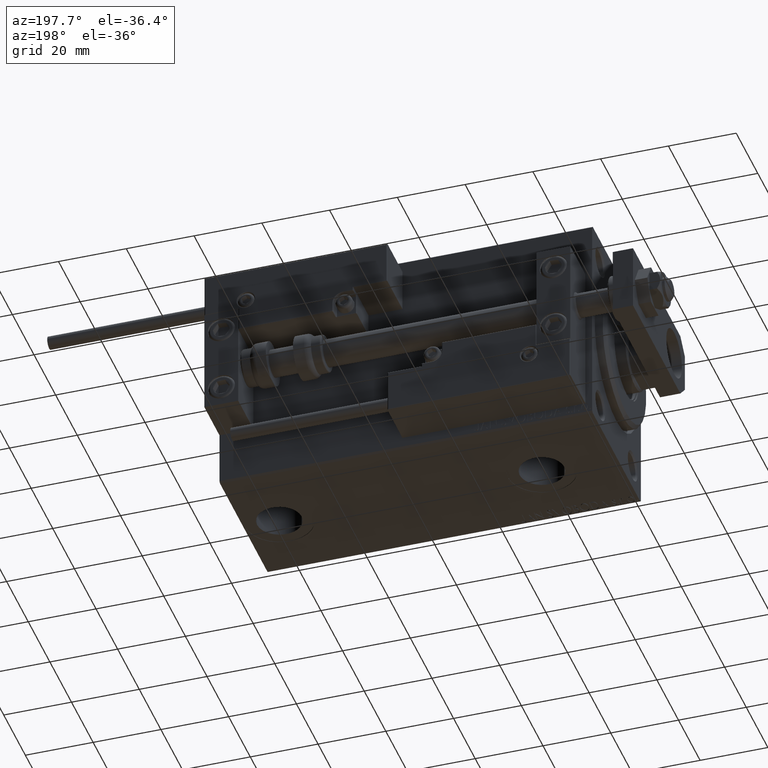
[diagram: clean part render]
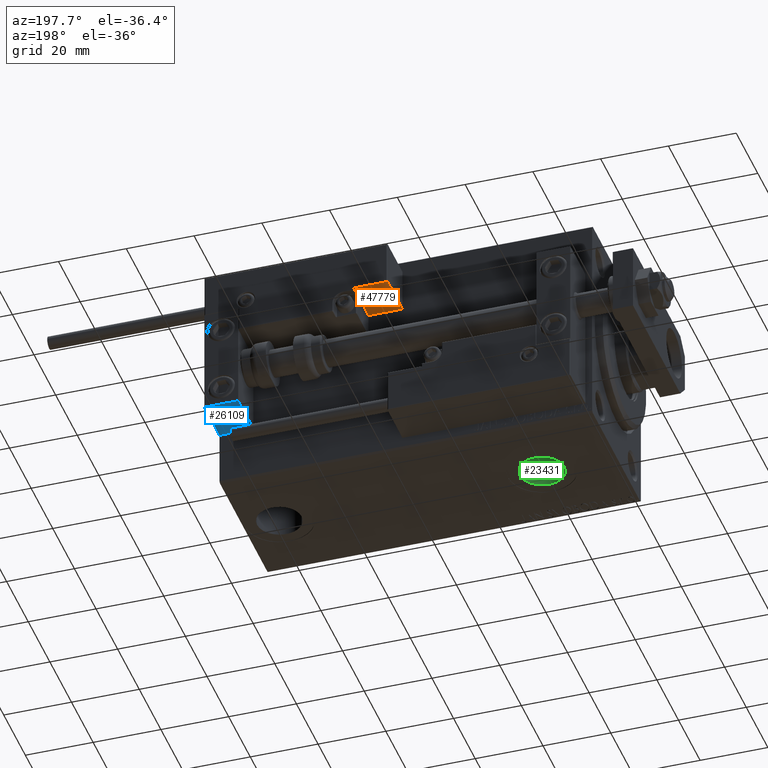
[diagram: same view with three faces highlighted in distinct colors, each labeled with its STEP entity id]
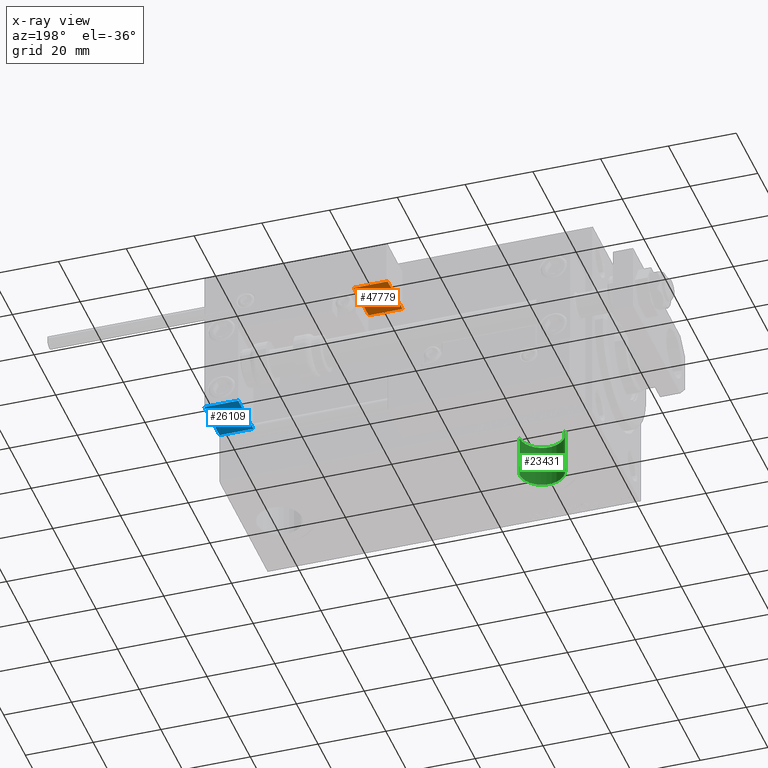
[diagram: x-ray of the same camera — body ghosted, the three highlighted faces saturated]
A machine part, auxiliary view with three faces highlighted in distinct colors.
The next image is the same camera in x-ray (body ghosted, the three faces saturated) — at least one of them is partly hidden behind the body in this view.
Their STEP definitions:

[orange] entity #47779 — the highlighted planar face has unit normal (-0, 0, 1).
#71 = VERTEX_POINT ( 'NONE', #28585 ) ;
#1739 = VERTEX_POINT ( 'NONE', #39042 ) ;
#2638 = VECTOR ( 'NONE', #50954, 1000.000000000000000 ) ;
#2872 = DIRECTION ( 'NONE',  ( -1.000000000000000000, 1.734723475976796001E-16, -0.000000000000000000 ) ) ;
#3399 = CARTESIAN_POINT ( 'NONE',  ( 17.00000000000000000, 7.000000000000009770, 13.70000000000000107 ) ) ;
#6098 = VECTOR ( 'NONE', #9371, 1000.000000000000000 ) ;
#6554 = VERTEX_POINT ( 'NONE', #35045 ) ;
#7495 = EDGE_LOOP ( 'NONE', ( #38696, #36607, #25867, #51426 ) ) ;
#9371 = DIRECTION ( 'NONE',  ( -0.000000000000000000, -0.000000000000000000, -1.000000000000000000 ) ) ;
#11879 = CARTESIAN_POINT ( 'NONE',  ( 17.00000000000000000, 7.000000000000009770, 13.70000000000000107 ) ) ;
#12582 = EDGE_CURVE ( 'NONE', #6554, #1739, #31396, .T. ) ;
#14275 = LINE ( 'NONE', #19075, #2638 ) ;
#14310 = DIRECTION ( 'NONE',  ( 1.734723475976796001E-16, 1.000000000000000000, -0.000000000000000000 ) ) ;
#19075 = CARTESIAN_POINT ( 'NONE',  ( 27.00000000000006395, 7.000000000000007994, 14.00000000000000000 ) ) ;
#19171 = DIRECTION ( 'NONE',  ( 1.000000000000000000, -1.734723475976796001E-16, 0.000000000000000000 ) ) ;
#22820 = FACE_OUTER_BOUND ( 'NONE', #7495, .T. ) ;
#24620 = EDGE_CURVE ( 'NONE', #71, #1739, #14275, .T. ) ;
#25828 = LINE ( 'NONE', #37273, #6098 ) ;
#25867 = ORIENTED_EDGE ( 'NONE', *, *, #45265, .T. ) ;
#28585 = CARTESIAN_POINT ( 'NONE',  ( 27.00000000000006395, 7.000000000000007994, 13.70000000000000107 ) ) ;
#31396 = LINE ( 'NONE', #31662, #40519 ) ;
#31662 = CARTESIAN_POINT ( 'NONE',  ( 17.00000000000000000, 7.000000000000009770, 0.000000000000000000 ) ) ;
#33380 = VECTOR ( 'NONE', #2872, 1000.000000000000000 ) ;
#33562 = DIRECTION ( 'NONE',  ( -1.000000000000000000, 1.734723475976796001E-16, 0.000000000000000000 ) ) ;
#33864 = VERTEX_POINT ( 'NONE', #11879 ) ;
#35045 = CARTESIAN_POINT ( 'NONE',  ( 17.00000000000000000, 7.000000000000009770, 0.000000000000000000 ) ) ;
#36607 = ORIENTED_EDGE ( 'NONE', *, *, #44857, .T. ) ;
#37273 = CARTESIAN_POINT ( 'NONE',  ( 17.00000000000000000, 7.000000000000009770, 14.00000000000000000 ) ) ;
#37537 = PLANE ( 'NONE',  #40142 ) ;
#38696 = ORIENTED_EDGE ( 'NONE', *, *, #24620, .F. ) ;
#39042 = CARTESIAN_POINT ( 'NONE',  ( 27.00000000000006395, 7.000000000000007994, 0.000000000000000000 ) ) ;
#40142 = AXIS2_PLACEMENT_3D ( 'NONE', #49508, #14310, #33562 ) ;
#40519 = VECTOR ( 'NONE', #19171, 1000.000000000000000 ) ;
#44857 = EDGE_CURVE ( 'NONE', #71, #33864, #52039, .T. ) ;
#45265 = EDGE_CURVE ( 'NONE', #33864, #6554, #25828, .T. ) ;
#47779 = ADVANCED_FACE ( 'NONE', ( #22820 ), #37537, .F. ) ;
#49508 = CARTESIAN_POINT ( 'NONE',  ( 17.00000000000000000, 7.000000000000009770, 14.00000000000000000 ) ) ;
#50954 = DIRECTION ( 'NONE',  ( -0.000000000000000000, -0.000000000000000000, -1.000000000000000000 ) ) ;
#51426 = ORIENTED_EDGE ( 'NONE', *, *, #12582, .T. ) ;
#52039 = LINE ( 'NONE', #3399, #33380 ) ;

[blue] entity #26109 — the highlighted planar face has unit normal (0, 0, -1).
#1341 = CARTESIAN_POINT ( 'NONE',  ( 0.000000000000000000, -7.000000000000000000, -16.00000000000000711 ) ) ;
#3717 = CARTESIAN_POINT ( 'NONE',  ( 10.00000000000000000, 7.000000000000000000, -16.00000000000000711 ) ) ;
#3722 = CARTESIAN_POINT ( 'NONE',  ( 10.00000000000000000, 7.000000000000000000, -16.00000000000000711 ) ) ;
#5058 = CARTESIAN_POINT ( 'NONE',  ( 10.00000000000000000, -7.000000000000000000, -16.00000000000000711 ) ) ;
#5111 = DIRECTION ( 'NONE',  ( 0.000000000000000000, 0.000000000000000000, -1.000000000000000000 ) ) ;
#6298 = EDGE_CURVE ( 'NONE', #18025, #47807, #20751, .T. ) ;
#6432 = EDGE_LOOP ( 'NONE', ( #7095, #27094, #11388, #6438 ) ) ;
#6438 = ORIENTED_EDGE ( 'NONE', *, *, #19579, .T. ) ;
#7071 = DIRECTION ( 'NONE',  ( 0.000000000000000000, -1.000000000000000000, 0.000000000000000000 ) ) ;
#7095 = ORIENTED_EDGE ( 'NONE', *, *, #39315, .F. ) ;
#7817 = AXIS2_PLACEMENT_3D ( 'NONE', #33313, #5111, #25577 ) ;
#10648 = DIRECTION ( 'NONE',  ( 0.000000000000000000, -1.000000000000000000, 0.000000000000000000 ) ) ;
#11388 = ORIENTED_EDGE ( 'NONE', *, *, #39757, .T. ) ;
#11958 = DIRECTION ( 'NONE',  ( -1.000000000000000000, -0.000000000000000000, -0.000000000000000000 ) ) ;
#14008 = VERTEX_POINT ( 'NONE', #1341 ) ;
#15165 = LINE ( 'NONE', #3717, #49318 ) ;
#18025 = VERTEX_POINT ( 'NONE', #28680 ) ;
#19579 = EDGE_CURVE ( 'NONE', #23203, #14008, #51903, .T. ) ;
#20751 = LINE ( 'NONE', #3722, #34219 ) ;
#23203 = VERTEX_POINT ( 'NONE', #5058 ) ;
#25577 = DIRECTION ( 'NONE',  ( -1.000000000000000000, 0.000000000000000000, -0.000000000000000000 ) ) ;
#26109 = ADVANCED_FACE ( 'NONE', ( #41527 ), #37028, .T. ) ;
#26198 = CARTESIAN_POINT ( 'NONE',  ( 0.000000000000000000, 7.000000000000000000, -16.00000000000000711 ) ) ;
#27094 = ORIENTED_EDGE ( 'NONE', *, *, #6298, .F. ) ;
#28680 = CARTESIAN_POINT ( 'NONE',  ( 10.00000000000000000, 7.000000000000000000, -16.00000000000000711 ) ) ;
#33313 = CARTESIAN_POINT ( 'NONE',  ( 10.00000000000000000, 7.000000000000000000, -16.00000000000000711 ) ) ;
#34219 = VECTOR ( 'NONE', #11958, 1000.000000000000000 ) ;
#34783 = CARTESIAN_POINT ( 'NONE',  ( 0.000000000000000000, 7.000000000000000000, -16.00000000000000711 ) ) ;
#37028 = PLANE ( 'NONE',  #7817 ) ;
#39315 = EDGE_CURVE ( 'NONE', #47807, #14008, #46138, .T. ) ;
#39757 = EDGE_CURVE ( 'NONE', #18025, #23203, #15165, .T. ) ;
#39917 = VECTOR ( 'NONE', #7071, 1000.000000000000000 ) ;
#39939 = CARTESIAN_POINT ( 'NONE',  ( 10.00000000000000000, -7.000000000000000000, -16.00000000000000711 ) ) ;
#41527 = FACE_OUTER_BOUND ( 'NONE', #6432, .T. ) ;
#43202 = VECTOR ( 'NONE', #43921, 1000.000000000000000 ) ;
#43921 = DIRECTION ( 'NONE',  ( -1.000000000000000000, -0.000000000000000000, -0.000000000000000000 ) ) ;
#46138 = LINE ( 'NONE', #26198, #39917 ) ;
#47807 = VERTEX_POINT ( 'NONE', #34783 ) ;
#49318 = VECTOR ( 'NONE', #10648, 1000.000000000000000 ) ;
#51903 = LINE ( 'NONE', #39939, #43202 ) ;

[green] entity #23431 — the highlighted cylindrical surface (edge-blend (fillet) strip) has radius 6.58 mm, axis along (-0, -0, -1).
#2670 = EDGE_LOOP ( 'NONE', ( #27573, #8072, #24510, #48057 ) ) ;
#3379 = VECTOR ( 'NONE', #35809, 1000.000000000000000 ) ;
#5080 = VERTEX_POINT ( 'NONE', #38271 ) ;
#5204 = VECTOR ( 'NONE', #16028, 1000.000000000000000 ) ;
#5309 = AXIS2_PLACEMENT_3D ( 'NONE', #26537, #21327, #18841 ) ;
#8072 = ORIENTED_EDGE ( 'NONE', *, *, #41282, .T. ) ;
#9535 = CARTESIAN_POINT ( 'NONE',  ( 15.41999999999999638, -2.910683231281019398E-15, -19.50000000000000355 ) ) ;
#12394 = DIRECTION ( 'NONE',  ( -1.000000000000000000, 0.000000000000000000, 0.000000000000000000 ) ) ;
#15991 = DIRECTION ( 'NONE',  ( -1.000000000000000000, 0.000000000000000000, 0.000000000000000000 ) ) ;
#16028 = DIRECTION ( 'NONE',  ( -0.000000000000000000, -0.000000000000000000, -1.000000000000000000 ) ) ;
#16206 = AXIS2_PLACEMENT_3D ( 'NONE', #20372, #48545, #12394 ) ;
#16395 = FACE_OUTER_BOUND ( 'NONE', #2670, .T. ) ;
#18841 = DIRECTION ( 'NONE',  ( -1.000000000000000000, 0.000000000000000000, 0.000000000000000000 ) ) ;
#20372 = CARTESIAN_POINT ( 'NONE',  ( 22.00000000000000000, -2.910683231281019398E-15, -19.50000000000000355 ) ) ;
#20537 = VERTEX_POINT ( 'NONE', #25318 ) ;
#21327 = DIRECTION ( 'NONE',  ( 0.000000000000000000, 0.000000000000000000, -1.000000000000000000 ) ) ;
#22309 = CIRCLE ( 'NONE', #5309, 6.580000000000002736 ) ;
#23431 = ADVANCED_FACE ( 'NONE', ( #16395 ), #37107, .F. ) ;
#23847 = LINE ( 'NONE', #40059, #3379 ) ;
#24510 = ORIENTED_EDGE ( 'NONE', *, *, #47725, .T. ) ;
#25318 = CARTESIAN_POINT ( 'NONE',  ( 15.41999999999999638, -2.910683231281019398E-15, -32.40000000000000568 ) ) ;
#26537 = CARTESIAN_POINT ( 'NONE',  ( 22.00000000000000000, -2.910683231281019398E-15, -32.40000000000000568 ) ) ;
#27573 = ORIENTED_EDGE ( 'NONE', *, *, #39699, .F. ) ;
#28517 = CARTESIAN_POINT ( 'NONE',  ( 28.58000000000000185, -2.104865637442060750E-15, -19.50000000000000355 ) ) ;
#29302 = CARTESIAN_POINT ( 'NONE',  ( 28.58000000000000185, -2.104865637442060750E-15, -32.40000000000000568 ) ) ;
#32745 = CARTESIAN_POINT ( 'NONE',  ( 22.00000000000000000, -2.910683231281019398E-15, -19.50000000000000355 ) ) ;
#35809 = DIRECTION ( 'NONE',  ( -0.000000000000000000, -0.000000000000000000, -1.000000000000000000 ) ) ;
#35962 = LINE ( 'NONE', #28517, #5204 ) ;
#36985 = DIRECTION ( 'NONE',  ( 0.000000000000000000, 0.000000000000000000, -1.000000000000000000 ) ) ;
#37107 = CYLINDRICAL_SURFACE ( 'NONE', #16206, 6.580000000000002736 ) ;
#38245 = EDGE_CURVE ( 'NONE', #51345, #20537, #23847, .T. ) ;
#38271 = CARTESIAN_POINT ( 'NONE',  ( 28.58000000000000185, -2.104865637442060750E-15, -19.50000000000000355 ) ) ;
#39083 = AXIS2_PLACEMENT_3D ( 'NONE', #32745, #36985, #15991 ) ;
#39699 = EDGE_CURVE ( 'NONE', #5080, #51345, #43331, .T. ) ;
#40059 = CARTESIAN_POINT ( 'NONE',  ( 15.41999999999999638, -2.910683231281019398E-15, -19.50000000000000355 ) ) ;
#41282 = EDGE_CURVE ( 'NONE', #5080, #47894, #35962, .T. ) ;
#43331 = CIRCLE ( 'NONE', #39083, 6.580000000000002736 ) ;
#47725 = EDGE_CURVE ( 'NONE', #47894, #20537, #22309, .T. ) ;
#47894 = VERTEX_POINT ( 'NONE', #29302 ) ;
#48057 = ORIENTED_EDGE ( 'NONE', *, *, #38245, .F. ) ;
#48545 = DIRECTION ( 'NONE',  ( -0.000000000000000000, -0.000000000000000000, -1.000000000000000000 ) ) ;
#51345 = VERTEX_POINT ( 'NONE', #9535 ) ;